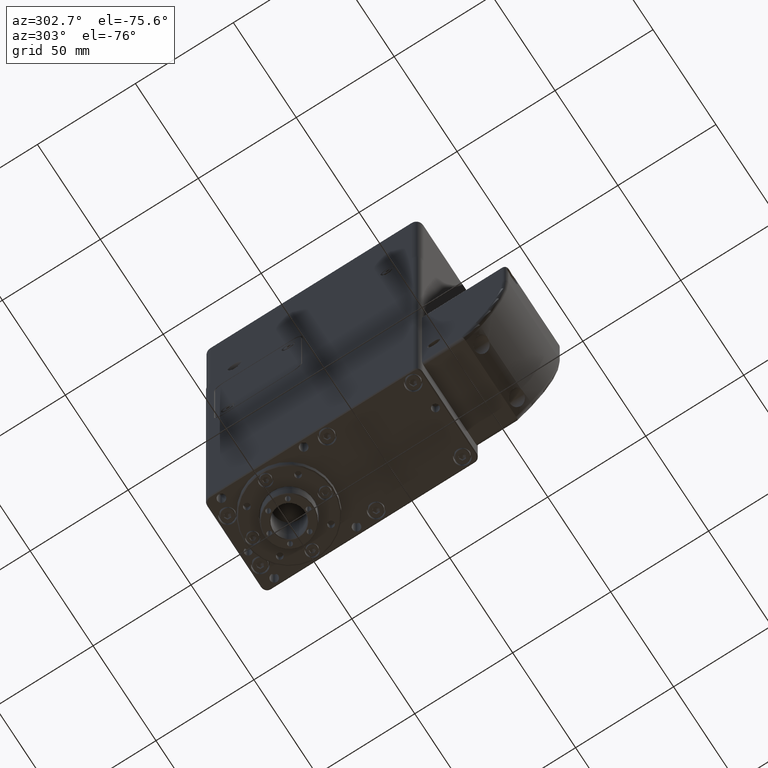
[diagram: clean part render]
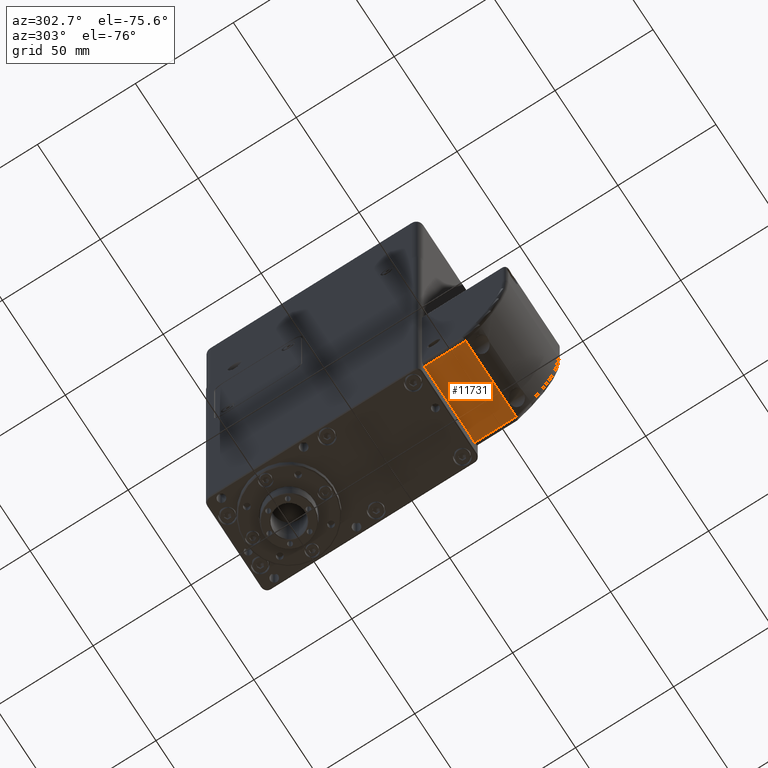
[diagram: same view with one face highlighted and labeled with its STEP entity id]
A machine part, auxiliary view. The second image highlights one B-rep face of the part: STEP entity #11731.
In plain terms, the highlighted planar face has unit normal (0, -0, -1).
Its self-contained STEP definition (entity closure, byte-faithful):
#1610=FACE_OUTER_BOUND('',#2389,.T.);
#2389=EDGE_LOOP('',(#9239,#9240,#9241,#9242));
#3119=LINE('',#18618,#4001);
#3292=LINE('',#19392,#4174);
#3297=LINE('',#19422,#4179);
#3298=LINE('',#19425,#4180);
#4001=VECTOR('',#14805,10.);
#4174=VECTOR('',#15532,10.);
#4179=VECTOR('',#15555,10.);
#4180=VECTOR('',#15560,10.);
#4967=VERTEX_POINT('',#18615);
#4968=VERTEX_POINT('',#18617);
#5152=VERTEX_POINT('',#19391);
#5154=VERTEX_POINT('',#19421);
#6252=EDGE_CURVE('',#4967,#4968,#3119,.T.);
#6575=EDGE_CURVE('',#4968,#5152,#3292,.T.);
#6584=EDGE_CURVE('',#5152,#5154,#3297,.T.);
#6586=EDGE_CURVE('',#5154,#4967,#3298,.T.);
#9239=ORIENTED_EDGE('',*,*,#6586,.F.);
#9240=ORIENTED_EDGE('',*,*,#6584,.F.);
#9241=ORIENTED_EDGE('',*,*,#6575,.F.);
#9242=ORIENTED_EDGE('',*,*,#6252,.F.);
#10484=PLANE('',#12847);
#11731=ADVANCED_FACE('',(#1610),#10484,.T.);
#12847=AXIS2_PLACEMENT_3D('',#19424,#15558,#15559);
#14805=DIRECTION('',(-1.,0.,0.));
#15532=DIRECTION('',(-7.89077848994466E-32,-1.,4.28626379701573E-16));
#15555=DIRECTION('',(1.,-1.9423925436145E-32,1.38777878078145E-16));
#15558=DIRECTION('center_axis',(1.38777878078145E-16,-4.28626379701573E-16,
-1.));
#15559=DIRECTION('ref_axis',(7.89077848994466E-32,1.,-4.28626379701573E-16));
#15560=DIRECTION('',(7.89077848994466E-32,1.,-4.28626379701573E-16));
#18615=CARTESIAN_POINT('',(20.,-82.,-2.66453525910038E-14));
#18617=CARTESIAN_POINT('',(-20.,-82.,-2.66453525910038E-14));
#18618=CARTESIAN_POINT('',(24.5,-82.,0.));
#19391=CARTESIAN_POINT('',(-20.,-103.094750193111,-1.77635683940025E-14));
#19392=CARTESIAN_POINT('',(-20.,-101.493208823174,-1.77635683940025E-14));
#19421=CARTESIAN_POINT('',(20.,-103.094750193111,-1.77635683940025E-14));
#19422=CARTESIAN_POINT('',(3.5,-103.094750193111,-1.77635683940025E-14));
#19424=CARTESIAN_POINT('Origin',(3.5,-103.094750193111,-1.77635683940025E-14));
#19425=CARTESIAN_POINT('',(20.,-101.493208823174,-1.77635683940025E-14));